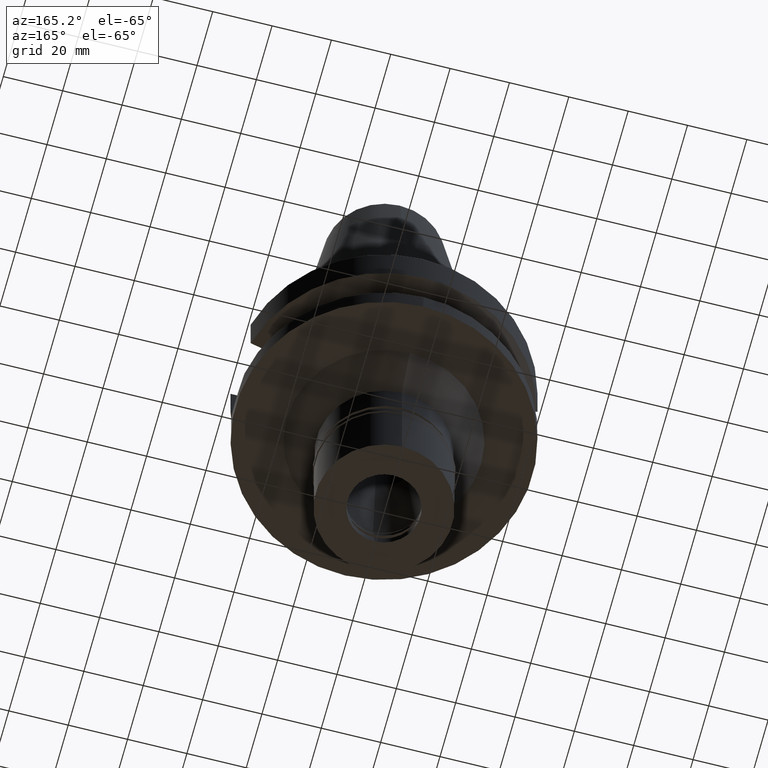
[diagram: clean part render]
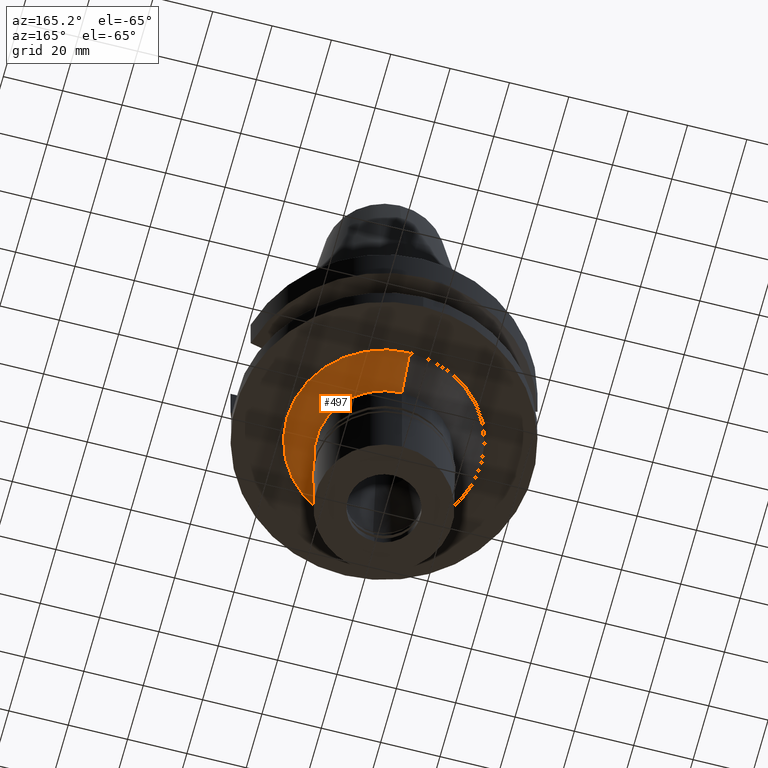
[diagram: same view with one face highlighted and labeled with its STEP entity id]
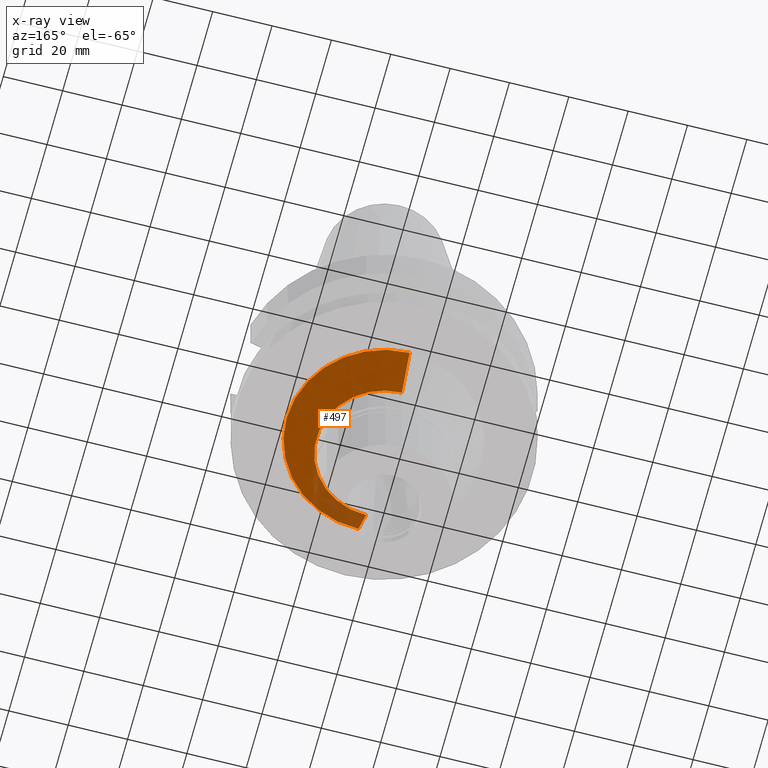
[diagram: x-ray of the same camera — body ghosted, the highlighted face saturated]
A machine part, auxiliary view. The second image highlights one B-rep face of the part: STEP entity #497.
The next image is the same camera in x-ray: the body ghosted, the highlighted face saturated — about 14% of this face is hidden behind the body in this view.
In plain terms, the highlighted conical surface has half-angle 45 deg.
Its self-contained STEP definition (entity closure, byte-faithful):
#116 = EDGE_CURVE ( 'NONE', #140, #2471, #1651, .T. ) ;
#140 = VERTEX_POINT ( 'NONE', #2601 ) ;
#191 = DIRECTION ( 'NONE',  ( 0.0000000000000000000, 0.7071067811865474617, -0.7071067811865474617 ) ) ;
#245 = EDGE_CURVE ( 'NONE', #859, #140, #2906, .T. ) ;
#307 = VECTOR ( 'NONE', #2221, 1000.000000000000114 ) ;
#338 = CARTESIAN_POINT ( 'NONE',  ( 0.0000000000000000000, 0.0000000000000000000, -38.00000000000000000 ) ) ;
#488 = EDGE_CURVE ( 'NONE', #859, #598, #969, .T. ) ;
#497 = ADVANCED_FACE ( 'NONE', ( #1309 ), #1706, .T. ) ;
#543 = CARTESIAN_POINT ( 'NONE',  ( 0.0000000000000000000, 32.75000000000000000, -38.00000000000000000 ) ) ;
#598 = VERTEX_POINT ( 'NONE', #1109 ) ;
#609 = ORIENTED_EDGE ( 'NONE', *, *, #2174, .T. ) ;
#662 = CARTESIAN_POINT ( 'NONE',  ( 0.0000000000000000000, -32.75000000000000000, -38.00000000000000000 ) ) ;
#859 = VERTEX_POINT ( 'NONE', #2110 ) ;
#914 = VECTOR ( 'NONE', #191, 1000.000000000000114 ) ;
#969 = CIRCLE ( 'NONE', #1130, 32.75000000000000000 ) ;
#1070 = CARTESIAN_POINT ( 'NONE',  ( 0.0000000000000000000, 0.0000000000000000000, -43.00000000000000000 ) ) ;
#1109 = CARTESIAN_POINT ( 'NONE',  ( 0.0000000000000000000, -32.75000000000000000, -38.00000000000000000 ) ) ;
#1130 = AXIS2_PLACEMENT_3D ( 'NONE', #338, #1701, #1720 ) ;
#1309 = FACE_OUTER_BOUND ( 'NONE', #2417, .T. ) ;
#1464 = DIRECTION ( 'NONE',  ( 0.0000000000000000000, 0.0000000000000000000, 1.000000000000000000 ) ) ;
#1651 = CIRCLE ( 'NONE', #2362, 22.75000000000000000 ) ;
#1701 = DIRECTION ( 'NONE',  ( 0.0000000000000000000, 0.0000000000000000000, -1.000000000000000000 ) ) ;
#1706 = CONICAL_SURFACE ( 'NONE', #2925, 27.75000000000000000, 0.7853981633972997312 ) ;
#1720 = DIRECTION ( 'NONE',  ( 0.0000000000000000000, 1.000000000000000000, 0.0000000000000000000 ) ) ;
#1898 = CARTESIAN_POINT ( 'NONE',  ( 0.0000000000000000000, 0.0000000000000000000, -48.00000000000000000 ) ) ;
#1949 = CARTESIAN_POINT ( 'NONE',  ( 0.0000000000000000000, -22.75000000000000000, -48.00000000000000000 ) ) ;
#2099 = ORIENTED_EDGE ( 'NONE', *, *, #116, .F. ) ;
#2110 = CARTESIAN_POINT ( 'NONE',  ( 0.0000000000000000000, 32.75000000000000000, -38.00000000000000000 ) ) ;
#2174 = EDGE_CURVE ( 'NONE', #598, #2471, #2593, .T. ) ;
#2185 = DIRECTION ( 'NONE',  ( 0.0000000000000000000, 1.000000000000000000, 0.0000000000000000000 ) ) ;
#2221 = DIRECTION ( 'NONE',  ( 0.0000000000000000000, -0.7071067811865474617, -0.7071067811865474617 ) ) ;
#2301 = ORIENTED_EDGE ( 'NONE', *, *, #245, .F. ) ;
#2360 = DIRECTION ( 'NONE',  ( 0.0000000000000000000, 0.0000000000000000000, -1.000000000000000000 ) ) ;
#2362 = AXIS2_PLACEMENT_3D ( 'NONE', #1898, #2360, #2856 ) ;
#2417 = EDGE_LOOP ( 'NONE', ( #2644, #609, #2099, #2301 ) ) ;
#2471 = VERTEX_POINT ( 'NONE', #1949 ) ;
#2593 = LINE ( 'NONE', #662, #914 ) ;
#2601 = CARTESIAN_POINT ( 'NONE',  ( 0.0000000000000000000, 22.75000000000000000, -48.00000000000000000 ) ) ;
#2644 = ORIENTED_EDGE ( 'NONE', *, *, #488, .T. ) ;
#2856 = DIRECTION ( 'NONE',  ( 0.0000000000000000000, 1.000000000000000000, 0.0000000000000000000 ) ) ;
#2906 = LINE ( 'NONE', #543, #307 ) ;
#2925 = AXIS2_PLACEMENT_3D ( 'NONE', #1070, #1464, #2185 ) ;